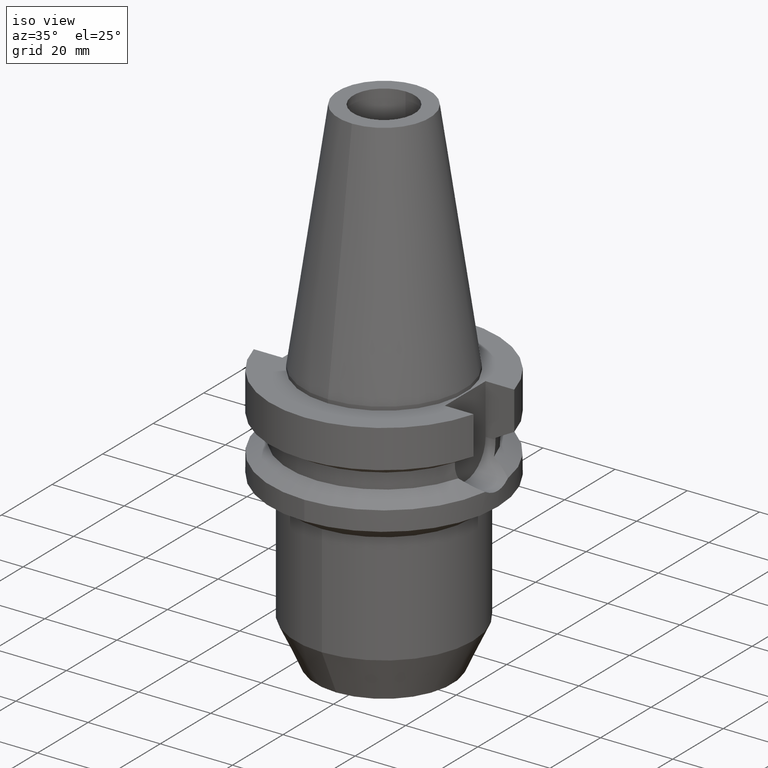
[diagram: clean part render]
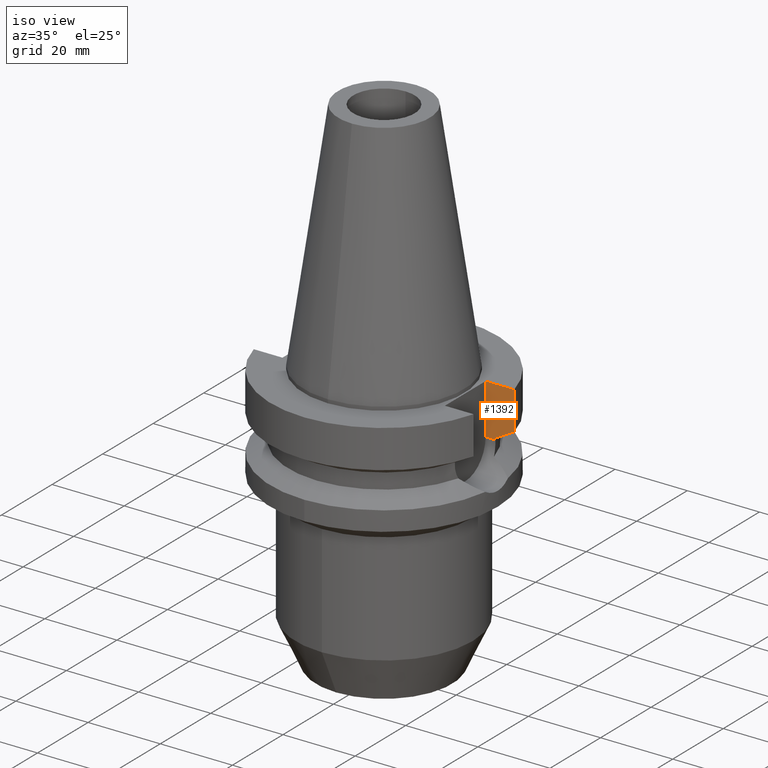
[diagram: same view with one face highlighted and labeled with its STEP entity id]
A machine part, iso view. The second image highlights one B-rep face of the part: STEP entity #1392.
In plain terms, the highlighted planar face has unit normal (0, 1, 0).
Its self-contained STEP definition (entity closure, byte-faithful):
#307=DIRECTION('',(0.E0,0.E0,-1.E0));
#308=VECTOR('',#307,1.395E1);
#309=CARTESIAN_POINT('',(2.25E1,8.05E0,-1.E0));
#310=LINE('',#309,#308);
#337=DIRECTION('',(1.E0,-3.506251283226E-14,0.E0));
#338=VECTOR('',#337,7.954022722788E0);
#339=CARTESIAN_POINT('',(2.25E1,8.05E0,-1.E0));
#340=LINE('',#339,#338);
#344=CARTESIAN_POINT('',(3.045402291452E1,8.049999274646E0,-1.156551218578E1));
#345=CARTESIAN_POINT('',(2.987645776276E1,8.049999274646E0,-1.188789692552E1));
#346=CARTESIAN_POINT('',(2.872091170142E1,8.049999726175E0,-1.253193798080E1));
#347=CARTESIAN_POINT('',(2.698538635863E1,8.050002046418E0,-1.349404290390E1));
#348=CARTESIAN_POINT('',(2.582730534584E1,8.049995407574E0,-1.413348344969E1));
#349=CARTESIAN_POINT('',(2.524772413383E1,8.049995407574E0,-1.445229209074E1));
#381=DIRECTION('',(2.941988537298E-6,-9.227150035334E-6,9.999999999531E-1));
#382=VECTOR('',#381,4.977079092833E-1);
#383=CARTESIAN_POINT('',(2.524772266958E1,8.05E0,-1.495E1));
#384=LINE('',#383,#382);
#437=DIRECTION('',(-1.814717934255E-8,6.865298430301E-8,1.E0));
#438=VECTOR('',#437,1.056551218578E1);
#439=CARTESIAN_POINT('',(3.045402291452E1,8.049999274646E0,-1.156551218578E1));
#440=LINE('',#439,#438);
#531=DIRECTION('',(1.E0,-1.551559937893E-14,0.E0));
#532=VECTOR('',#531,2.747722669580E0);
#533=CARTESIAN_POINT('',(2.25E1,8.05E0,-1.495E1));
#534=LINE('',#533,#532);
#1075=CARTESIAN_POINT('',(2.25E1,8.05E0,-1.495E1));
#1076=VERTEX_POINT('',#1075);
#1077=CARTESIAN_POINT('',(2.524772266958E1,8.05E0,-1.495E1));
#1078=VERTEX_POINT('',#1077);
#1105=CARTESIAN_POINT('',(2.524772413383E1,8.049995407574E0,-1.445229209074E1));
#1106=VERTEX_POINT('',#1105);
#1120=CARTESIAN_POINT('',(3.045402272279E1,8.05E0,-1.E0));
#1122=VERTEX_POINT('',#1120);
#1123=CARTESIAN_POINT('',(2.25E1,8.05E0,-1.E0));
#1124=VERTEX_POINT('',#1123);
#1144=VERTEX_POINT('',#344);
#1375=CARTESIAN_POINT('',(2.25E1,8.05E0,-1.495E1));
#1376=DIRECTION('',(0.E0,1.E0,0.E0));
#1377=DIRECTION('',(0.E0,0.E0,1.E0));
#1378=AXIS2_PLACEMENT_3D('',#1375,#1376,#1377);
#1379=PLANE('',#1378);
#1381=ORIENTED_EDGE('',*,*,#1380,.F.);
#1383=ORIENTED_EDGE('',*,*,#1382,.F.);
#1384=ORIENTED_EDGE('',*,*,#1365,.F.);
#1385=ORIENTED_EDGE('',*,*,#1234,.T.);
#1387=ORIENTED_EDGE('',*,*,#1386,.F.);
#1389=ORIENTED_EDGE('',*,*,#1388,.T.);
#1390=EDGE_LOOP('',(#1381,#1383,#1384,#1385,#1387,#1389));
#1391=FACE_OUTER_BOUND('',#1390,.F.);
#350=B_SPLINE_CURVE_WITH_KNOTS('',3,(#344,#345,#346,#347,#348,#349),
.UNSPECIFIED.,.F.,.F.,(4,1,1,4),(0.E0,3.333333333333E-1,6.666666666667E-1,1.E0),
.UNSPECIFIED.);
#1234=EDGE_CURVE('',#1124,#1122,#340,.T.);
#1365=EDGE_CURVE('',#1124,#1076,#310,.T.);
#1380=EDGE_CURVE('',#1078,#1106,#384,.T.);
#1382=EDGE_CURVE('',#1076,#1078,#534,.T.);
#1386=EDGE_CURVE('',#1144,#1122,#440,.T.);
#1388=EDGE_CURVE('',#1144,#1106,#350,.T.);
#1392=ADVANCED_FACE('',(#1391),#1379,.F.);